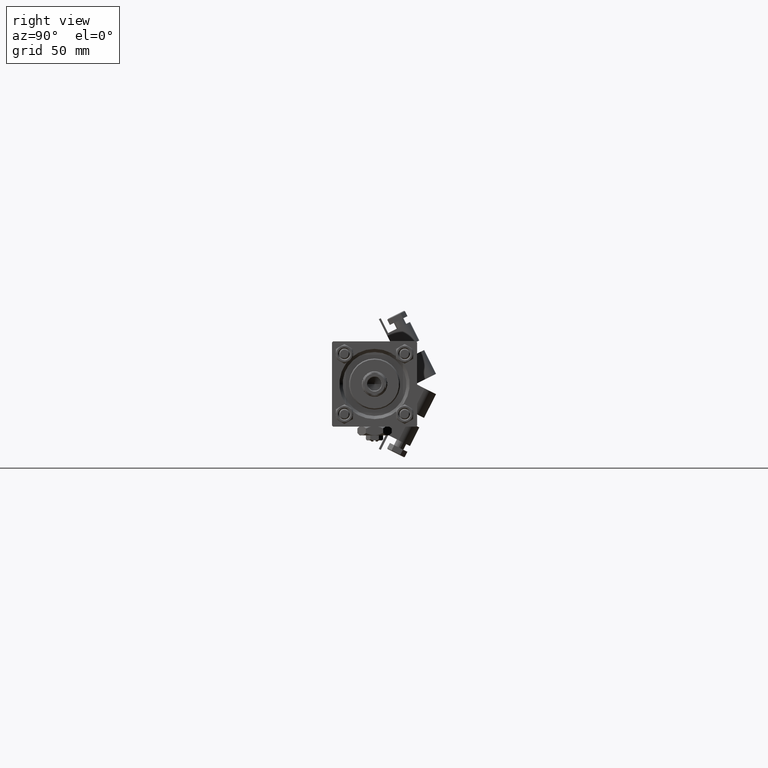
[diagram: clean part render]
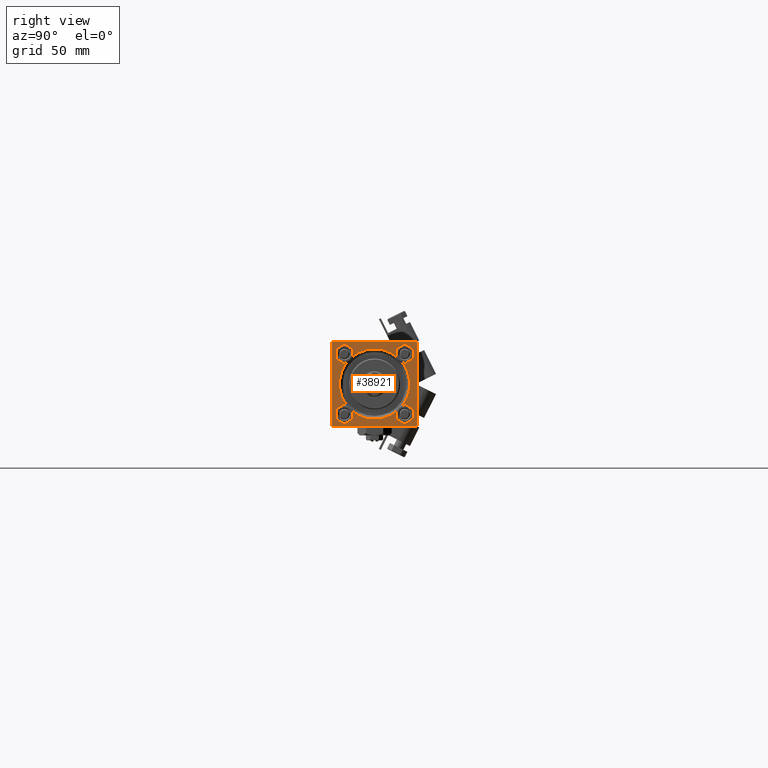
[diagram: same view with one face highlighted and labeled with its STEP entity id]
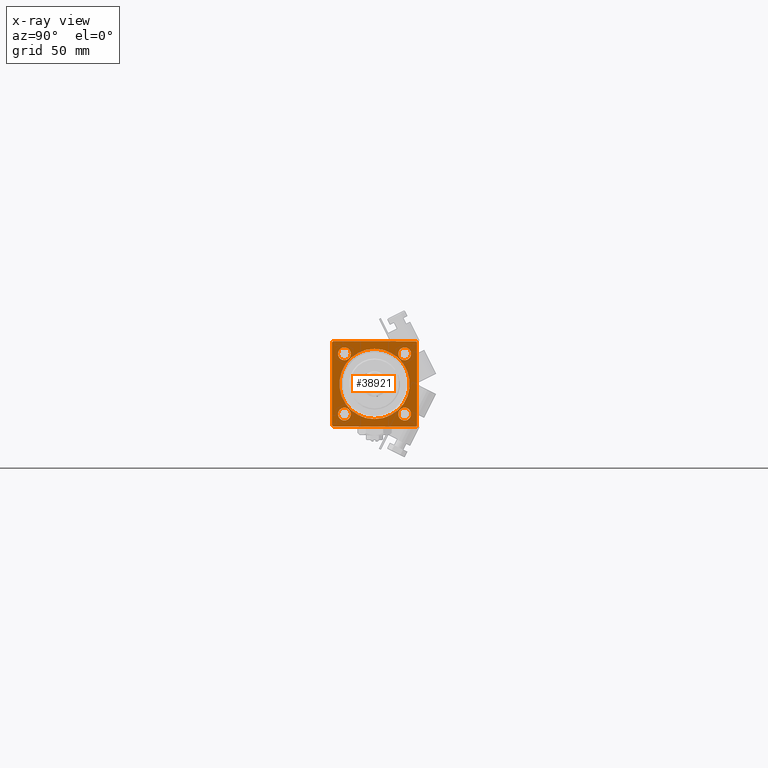
[diagram: x-ray of the same camera — body ghosted, the highlighted face saturated]
A machine part, right view. The second image highlights one B-rep face of the part: STEP entity #38921.
The next image is the same camera in x-ray: the body ghosted, the highlighted face saturated — about 0% of this face is hidden behind the body in this view.
In plain terms, the highlighted planar face has unit normal (-1, 0, 0).
Its self-contained STEP definition (entity closure, byte-faithful):
#202 = EDGE_CURVE ( 'NONE', #39876, #8305, #13475, .T. ) ;
#263 = AXIS2_PLACEMENT_3D ( 'NONE', #32799, #32526, #16756 ) ;
#813 = VERTEX_POINT ( 'NONE', #32885 ) ;
#1082 = CIRCLE ( 'NONE', #40292, 3.000000000000059952 ) ;
#1430 = VERTEX_POINT ( 'NONE', #31110 ) ;
#1540 = ORIENTED_EDGE ( 'NONE', *, *, #47601, .T. ) ;
#2029 = LINE ( 'NONE', #37842, #19307 ) ;
#2063 = CARTESIAN_POINT ( 'NONE',  ( 299.0000000000000000, -14.15000000000000036, 14.15000000000000036 ) ) ;
#2493 = CARTESIAN_POINT ( 'NONE',  ( 299.0000000000000000, 14.15000000000000036, 17.14999999999997726 ) ) ;
#2593 = DIRECTION ( 'NONE',  ( 0.000000000000000000, 0.000000000000000000, 1.000000000000000000 ) ) ;
#2762 = DIRECTION ( 'NONE',  ( -1.000000000000000000, -0.000000000000000000, -0.000000000000000000 ) ) ;
#2793 = DIRECTION ( 'NONE',  ( -1.000000000000000000, -0.000000000000000000, -0.000000000000000000 ) ) ;
#2889 = VECTOR ( 'NONE', #24231, 1000.000000000000000 ) ;
#2927 = AXIS2_PLACEMENT_3D ( 'NONE', #15484, #36601, #52114 ) ;
#3188 = ORIENTED_EDGE ( 'NONE', *, *, #48593, .T. ) ;
#4080 = CARTESIAN_POINT ( 'NONE',  ( 299.0000000000000000, 14.15000000000000036, -17.14999999999997726 ) ) ;
#4718 = CIRCLE ( 'NONE', #34591, 16.49999999999993250 ) ;
#4820 = CARTESIAN_POINT ( 'NONE',  ( 299.0000000000000000, 19.49999999999999645, 20.00000000000000000 ) ) ;
#5698 = VERTEX_POINT ( 'NONE', #49871 ) ;
#5737 = VERTEX_POINT ( 'NONE', #9497 ) ;
#6115 = AXIS2_PLACEMENT_3D ( 'NONE', #43212, #22889, #2593 ) ;
#6429 = VECTOR ( 'NONE', #23052, 1000.000000000000000 ) ;
#6568 = CARTESIAN_POINT ( 'NONE',  ( 299.0000000000000000, -14.15000000000000036, -17.14999999999997726 ) ) ;
#6609 = AXIS2_PLACEMENT_3D ( 'NONE', #8645, #12402, #36718 ) ;
#6649 = ORIENTED_EDGE ( 'NONE', *, *, #27037, .T. ) ;
#6829 = LINE ( 'NONE', #23937, #30010 ) ;
#7387 = EDGE_CURVE ( 'NONE', #25232, #41618, #36842, .T. ) ;
#7783 = VERTEX_POINT ( 'NONE', #11488 ) ;
#7800 = VECTOR ( 'NONE', #30584, 1000.000000000000114 ) ;
#8068 = FACE_BOUND ( 'NONE', #47732, .T. ) ;
#8107 = EDGE_CURVE ( 'NONE', #12533, #48720, #48036, .T. ) ;
#8305 = VERTEX_POINT ( 'NONE', #26887 ) ;
#8645 = CARTESIAN_POINT ( 'NONE',  ( 299.0000000000000000, -14.15000000000000036, -14.15000000000000036 ) ) ;
#9078 = ORIENTED_EDGE ( 'NONE', *, *, #202, .T. ) ;
#9124 = DIRECTION ( 'NONE',  ( 0.000000000000000000, 0.000000000000000000, 1.000000000000000000 ) ) ;
#9215 = VERTEX_POINT ( 'NONE', #6568 ) ;
#9323 = EDGE_CURVE ( 'NONE', #41919, #5698, #1082, .T. ) ;
#9393 = PLANE ( 'NONE',  #35759 ) ;
#9497 = CARTESIAN_POINT ( 'NONE',  ( 299.0000000000000000, 14.15000000000000036, 11.15000000000002700 ) ) ;
#9756 = DIRECTION ( 'NONE',  ( 0.000000000000000000, 0.000000000000000000, 1.000000000000000000 ) ) ;
#10325 = DIRECTION ( 'NONE',  ( 0.000000000000000000, 0.000000000000000000, 1.000000000000000000 ) ) ;
#10425 = DIRECTION ( 'NONE',  ( 0.000000000000000000, 0.000000000000000000, 1.000000000000000000 ) ) ;
#10593 = EDGE_LOOP ( 'NONE', ( #15431, #42567 ) ) ;
#10627 = EDGE_CURVE ( 'NONE', #5737, #46016, #19014, .T. ) ;
#11016 = LINE ( 'NONE', #39095, #6429 ) ;
#11050 = CARTESIAN_POINT ( 'NONE',  ( 299.0000000000000000, 14.15000000000000036, -11.15000000000002522 ) ) ;
#11423 = DIRECTION ( 'NONE',  ( 0.000000000000000000, 0.000000000000000000, 1.000000000000000000 ) ) ;
#11488 = CARTESIAN_POINT ( 'NONE',  ( 299.0000000000000000, -20.00000000000000000, -19.50000000000002487 ) ) ;
#11960 = CARTESIAN_POINT ( 'NONE',  ( 299.0000000000000000, -14.15000000000000036, -11.15000000000002522 ) ) ;
#12402 = DIRECTION ( 'NONE',  ( -1.000000000000000000, -0.000000000000000000, -0.000000000000000000 ) ) ;
#12533 = VERTEX_POINT ( 'NONE', #4820 ) ;
#12718 = ORIENTED_EDGE ( 'NONE', *, *, #50816, .F. ) ;
#13227 = EDGE_CURVE ( 'NONE', #1430, #7783, #36519, .T. ) ;
#13240 = CARTESIAN_POINT ( 'NONE',  ( 299.0000000000000000, -19.49999999999997513, 19.99999999999999645 ) ) ;
#13277 = CARTESIAN_POINT ( 'NONE',  ( 299.0000000000000000, -19.50000000000002487, -20.00000000000000000 ) ) ;
#13475 = LINE ( 'NONE', #34067, #7800 ) ;
#15074 = EDGE_CURVE ( 'NONE', #5698, #41919, #42185, .T. ) ;
#15187 = AXIS2_PLACEMENT_3D ( 'NONE', #39740, #28261, #11423 ) ;
#15431 = ORIENTED_EDGE ( 'NONE', *, *, #20051, .T. ) ;
#15484 = CARTESIAN_POINT ( 'NONE',  ( 299.0000000000000000, -14.15000000000000036, 14.15000000000000036 ) ) ;
#16756 = DIRECTION ( 'NONE',  ( 0.000000000000000000, 0.000000000000000000, 1.000000000000000000 ) ) ;
#16995 = ORIENTED_EDGE ( 'NONE', *, *, #15074, .T. ) ;
#17041 = ORIENTED_EDGE ( 'NONE', *, *, #10627, .T. ) ;
#17042 = EDGE_CURVE ( 'NONE', #49071, #8305, #11016, .T. ) ;
#17653 = CARTESIAN_POINT ( 'NONE',  ( 299.0000000000000000, 19.99999999999999645, -20.00000000000000000 ) ) ;
#17684 = DIRECTION ( 'NONE',  ( -1.000000000000000000, 0.000000000000000000, -0.000000000000000000 ) ) ;
#17949 = DIRECTION ( 'NONE',  ( -0.000000000000000000, 0.000000000000000000, 1.000000000000000000 ) ) ;
#18219 = FACE_OUTER_BOUND ( 'NONE', #47322, .T. ) ;
#18631 = CIRCLE ( 'NONE', #34015, 2.999999999999973355 ) ;
#19014 = CIRCLE ( 'NONE', #263, 2.999999999999973355 ) ;
#19049 = DIRECTION ( 'NONE',  ( 0.000000000000000000, 0.000000000000000000, 1.000000000000000000 ) ) ;
#19307 = VECTOR ( 'NONE', #38101, 1000.000000000000114 ) ;
#19486 = DIRECTION ( 'NONE',  ( -1.000000000000000000, -0.000000000000000000, -0.000000000000000000 ) ) ;
#19979 = DIRECTION ( 'NONE',  ( 0.000000000000000000, -0.7071067811865671127, 0.7071067811865279218 ) ) ;
#20051 = EDGE_CURVE ( 'NONE', #813, #28727, #4718, .T. ) ;
#22831 = CIRCLE ( 'NONE', #6609, 2.999999999999976463 ) ;
#22889 = DIRECTION ( 'NONE',  ( -1.000000000000000000, -0.000000000000000000, -0.000000000000000000 ) ) ;
#23052 = DIRECTION ( 'NONE',  ( 0.000000000000000000, 0.000000000000000000, -1.000000000000000000 ) ) ;
#23179 = EDGE_CURVE ( 'NONE', #7783, #39557, #2029, .T. ) ;
#23937 = CARTESIAN_POINT ( 'NONE',  ( 299.0000000000000000, -20.00000000000000355, 19.49999999999996803 ) ) ;
#24045 = CIRCLE ( 'NONE', #6115, 2.999999999999976463 ) ;
#24154 = ORIENTED_EDGE ( 'NONE', *, *, #17042, .F. ) ;
#24231 = DIRECTION ( 'NONE',  ( 0.000000000000000000, 8.673617379884036705E-17, -1.000000000000000000 ) ) ;
#25135 = EDGE_LOOP ( 'NONE', ( #45304, #16995 ) ) ;
#25232 = VERTEX_POINT ( 'NONE', #4080 ) ;
#25801 = ORIENTED_EDGE ( 'NONE', *, *, #8107, .T. ) ;
#26887 = CARTESIAN_POINT ( 'NONE',  ( 299.0000000000000000, 19.99999999999999645, -19.49999999999997158 ) ) ;
#27037 = EDGE_CURVE ( 'NONE', #46016, #5737, #18631, .T. ) ;
#27149 = ORIENTED_EDGE ( 'NONE', *, *, #13227, .T. ) ;
#27590 = AXIS2_PLACEMENT_3D ( 'NONE', #51828, #19486, #10425 ) ;
#27734 = DIRECTION ( 'NONE',  ( 0.000000000000000000, -1.000000000000000000, -8.673617379884035472E-17 ) ) ;
#28037 = ORIENTED_EDGE ( 'NONE', *, *, #23179, .T. ) ;
#28261 = DIRECTION ( 'NONE',  ( -1.000000000000000000, -0.000000000000000000, -0.000000000000000000 ) ) ;
#28727 = VERTEX_POINT ( 'NONE', #35562 ) ;
#28943 = EDGE_CURVE ( 'NONE', #49071, #12533, #39753, .T. ) ;
#30010 = VECTOR ( 'NONE', #35967, 1000.000000000000114 ) ;
#30584 = DIRECTION ( 'NONE',  ( -0.000000000000000000, 0.7071067811865474617, 0.7071067811865474617 ) ) ;
#30999 = CIRCLE ( 'NONE', #27590, 16.49999999999993250 ) ;
#31110 = CARTESIAN_POINT ( 'NONE',  ( 299.0000000000000000, -20.00000000000000355, 19.49999999999996803 ) ) ;
#31792 = VECTOR ( 'NONE', #33965, 1000.000000000000000 ) ;
#32526 = DIRECTION ( 'NONE',  ( -1.000000000000000000, -0.000000000000000000, -0.000000000000000000 ) ) ;
#32799 = CARTESIAN_POINT ( 'NONE',  ( 299.0000000000000000, 14.15000000000000036, 14.15000000000000036 ) ) ;
#32885 = CARTESIAN_POINT ( 'NONE',  ( 299.0000000000000000, 0.000000000000000000, -16.49999999999993250 ) ) ;
#33965 = DIRECTION ( 'NONE',  ( 0.000000000000000000, -1.000000000000000000, 0.000000000000000000 ) ) ;
#33995 = FACE_BOUND ( 'NONE', #43589, .T. ) ;
#34015 = AXIS2_PLACEMENT_3D ( 'NONE', #47405, #2793, #9756 ) ;
#34067 = CARTESIAN_POINT ( 'NONE',  ( 299.0000000000000000, 19.99999999999999645, -19.49999999999997158 ) ) ;
#34257 = FACE_BOUND ( 'NONE', #25135, .T. ) ;
#34383 = EDGE_CURVE ( 'NONE', #9215, #46516, #22831, .T. ) ;
#34591 = AXIS2_PLACEMENT_3D ( 'NONE', #45746, #38252, #9124 ) ;
#34656 = DIRECTION ( 'NONE',  ( -1.000000000000000000, -0.000000000000000000, -0.000000000000000000 ) ) ;
#34776 = FACE_BOUND ( 'NONE', #10593, .T. ) ;
#34835 = CARTESIAN_POINT ( 'NONE',  ( 299.0000000000000000, 14.15000000000000036, -14.15000000000000036 ) ) ;
#35562 = CARTESIAN_POINT ( 'NONE',  ( 299.0000000000000000, 2.020667218593124028E-15, 16.49999999999993250 ) ) ;
#35759 = AXIS2_PLACEMENT_3D ( 'NONE', #39039, #17684, #17949 ) ;
#35967 = DIRECTION ( 'NONE',  ( -0.000000000000000000, -0.7071067811865474617, -0.7071067811865474617 ) ) ;
#36519 = LINE ( 'NONE', #49083, #2889 ) ;
#36601 = DIRECTION ( 'NONE',  ( -1.000000000000000000, -0.000000000000000000, -0.000000000000000000 ) ) ;
#36639 = EDGE_CURVE ( 'NONE', #46516, #9215, #47616, .T. ) ;
#36718 = DIRECTION ( 'NONE',  ( 0.000000000000000000, 0.000000000000000000, 1.000000000000000000 ) ) ;
#36842 = CIRCLE ( 'NONE', #52211, 2.999999999999976463 ) ;
#37842 = CARTESIAN_POINT ( 'NONE',  ( 299.0000000000000000, -19.50000000000002487, -20.00000000000000000 ) ) ;
#37964 = LINE ( 'NONE', #17653, #31792 ) ;
#38101 = DIRECTION ( 'NONE',  ( 0.000000000000000000, 0.7071067811865474617, -0.7071067811865474617 ) ) ;
#38252 = DIRECTION ( 'NONE',  ( -1.000000000000000000, -0.000000000000000000, -0.000000000000000000 ) ) ;
#38921 = ADVANCED_FACE ( 'NONE', ( #44687, #8068, #33995, #34257, #34776, #18219 ), #9393, .F. ) ;
#39007 = CARTESIAN_POINT ( 'NONE',  ( 299.0000000000000000, -14.15000000000000036, 11.14999999999994351 ) ) ;
#39039 = CARTESIAN_POINT ( 'NONE',  ( 299.0000000000000000, 0.000000000000000000, 0.000000000000000000 ) ) ;
#39095 = CARTESIAN_POINT ( 'NONE',  ( 299.0000000000000000, 19.99999999999999645, 20.00000000000000000 ) ) ;
#39557 = VERTEX_POINT ( 'NONE', #13277 ) ;
#39617 = CARTESIAN_POINT ( 'NONE',  ( 299.0000000000000000, 19.49999999999996803, -20.00000000000000000 ) ) ;
#39740 = CARTESIAN_POINT ( 'NONE',  ( 299.0000000000000000, -14.15000000000000036, -14.15000000000000036 ) ) ;
#39753 = LINE ( 'NONE', #40285, #46857 ) ;
#39876 = VERTEX_POINT ( 'NONE', #39617 ) ;
#40285 = CARTESIAN_POINT ( 'NONE',  ( 299.0000000000000000, 19.49999999999999645, 20.00000000000000000 ) ) ;
#40292 = AXIS2_PLACEMENT_3D ( 'NONE', #2063, #34656, #10325 ) ;
#41618 = VERTEX_POINT ( 'NONE', #11050 ) ;
#41919 = VERTEX_POINT ( 'NONE', #39007 ) ;
#42185 = CIRCLE ( 'NONE', #2927, 3.000000000000059952 ) ;
#42567 = ORIENTED_EDGE ( 'NONE', *, *, #51595, .T. ) ;
#43019 = ORIENTED_EDGE ( 'NONE', *, *, #34383, .T. ) ;
#43212 = CARTESIAN_POINT ( 'NONE',  ( 299.0000000000000000, 14.15000000000000036, -14.15000000000000036 ) ) ;
#43589 = EDGE_LOOP ( 'NONE', ( #17041, #6649 ) ) ;
#44687 = FACE_BOUND ( 'NONE', #48930, .T. ) ;
#45304 = ORIENTED_EDGE ( 'NONE', *, *, #9323, .T. ) ;
#45746 = CARTESIAN_POINT ( 'NONE',  ( 299.0000000000000000, 0.000000000000000000, 0.000000000000000000 ) ) ;
#46016 = VERTEX_POINT ( 'NONE', #2493 ) ;
#46516 = VERTEX_POINT ( 'NONE', #11960 ) ;
#46857 = VECTOR ( 'NONE', #19979, 1000.000000000000000 ) ;
#47322 = EDGE_LOOP ( 'NONE', ( #27149, #28037, #12718, #9078, #24154, #47408, #25801, #1540 ) ) ;
#47405 = CARTESIAN_POINT ( 'NONE',  ( 299.0000000000000000, 14.15000000000000036, 14.15000000000000036 ) ) ;
#47408 = ORIENTED_EDGE ( 'NONE', *, *, #28943, .T. ) ;
#47601 = EDGE_CURVE ( 'NONE', #48720, #1430, #6829, .T. ) ;
#47616 = CIRCLE ( 'NONE', #15187, 2.999999999999976463 ) ;
#47732 = EDGE_LOOP ( 'NONE', ( #50915, #3188 ) ) ;
#47920 = VECTOR ( 'NONE', #27734, 1000.000000000000000 ) ;
#48036 = LINE ( 'NONE', #52053, #47920 ) ;
#48252 = ORIENTED_EDGE ( 'NONE', *, *, #36639, .T. ) ;
#48593 = EDGE_CURVE ( 'NONE', #41618, #25232, #24045, .T. ) ;
#48720 = VERTEX_POINT ( 'NONE', #13240 ) ;
#48930 = EDGE_LOOP ( 'NONE', ( #43019, #48252 ) ) ;
#49071 = VERTEX_POINT ( 'NONE', #52751 ) ;
#49083 = CARTESIAN_POINT ( 'NONE',  ( 299.0000000000000000, -20.00000000000000355, 19.99999999999999645 ) ) ;
#49871 = CARTESIAN_POINT ( 'NONE',  ( 299.0000000000000000, -14.15000000000000036, 17.15000000000006253 ) ) ;
#50816 = EDGE_CURVE ( 'NONE', #39876, #39557, #37964, .T. ) ;
#50915 = ORIENTED_EDGE ( 'NONE', *, *, #7387, .T. ) ;
#51595 = EDGE_CURVE ( 'NONE', #28727, #813, #30999, .T. ) ;
#51828 = CARTESIAN_POINT ( 'NONE',  ( 299.0000000000000000, 0.000000000000000000, 0.000000000000000000 ) ) ;
#52053 = CARTESIAN_POINT ( 'NONE',  ( 299.0000000000000000, 19.99999999999999645, 20.00000000000000000 ) ) ;
#52114 = DIRECTION ( 'NONE',  ( 0.000000000000000000, 0.000000000000000000, 1.000000000000000000 ) ) ;
#52211 = AXIS2_PLACEMENT_3D ( 'NONE', #34835, #2762, #19049 ) ;
#52751 = CARTESIAN_POINT ( 'NONE',  ( 299.0000000000000000, 19.99999999999999645, 19.50000000000002842 ) ) ;